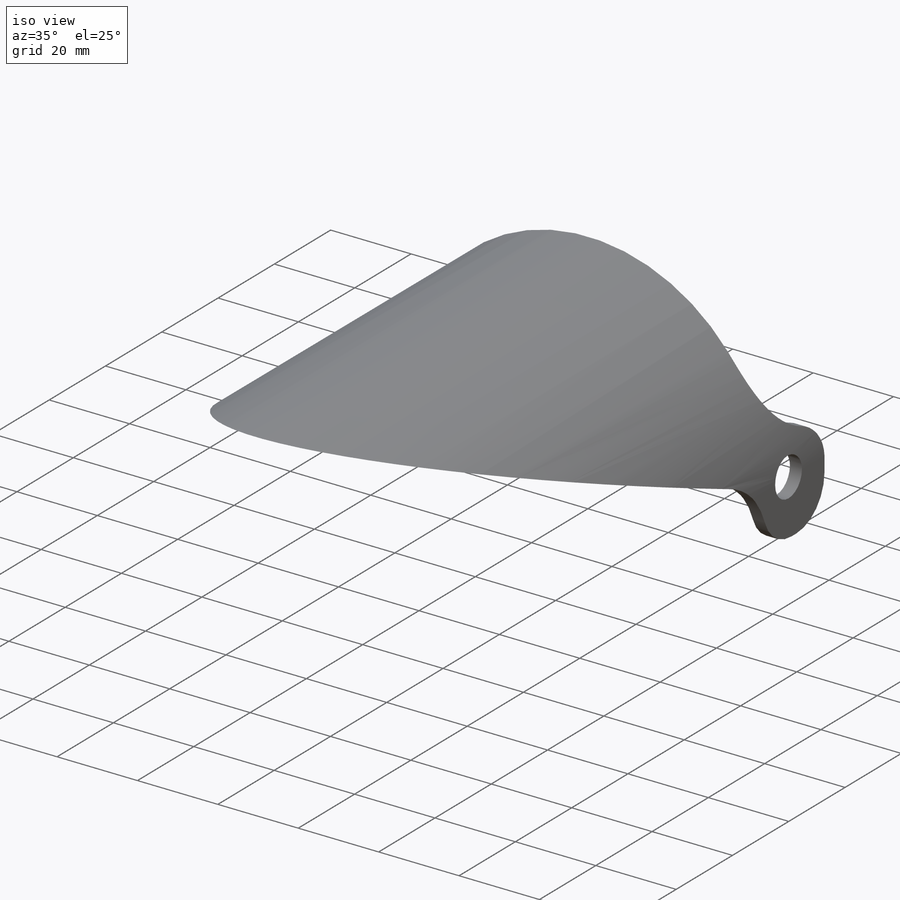
[diagram: iso view]
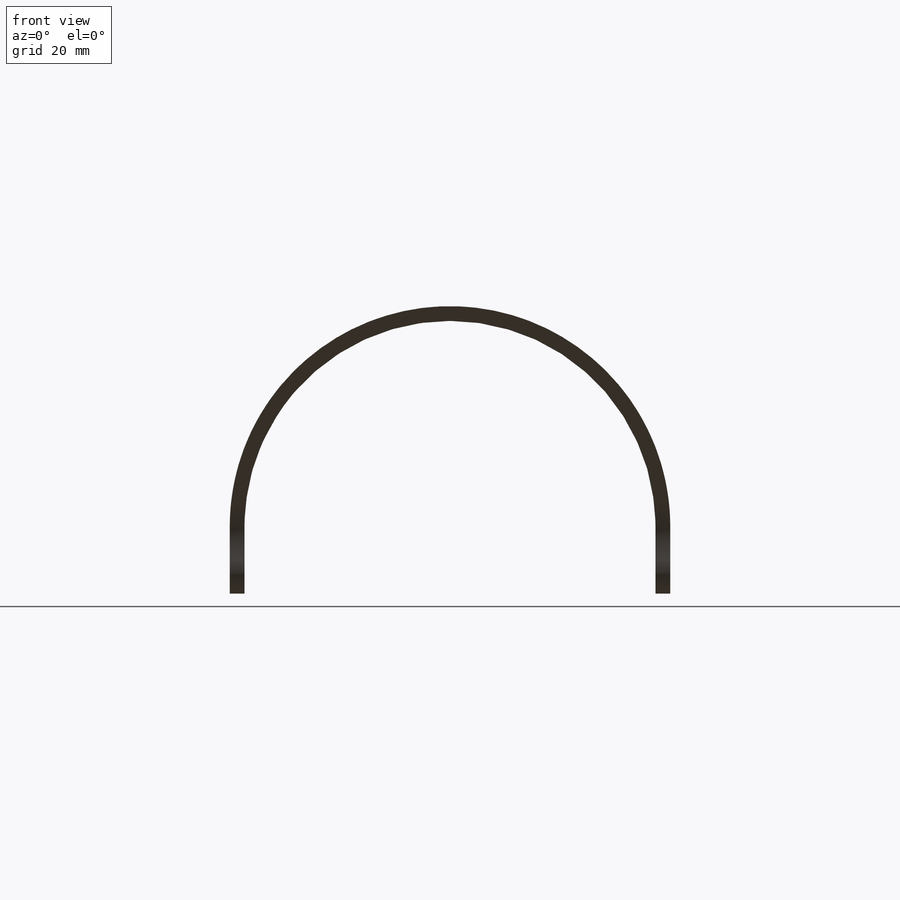
[diagram: front view]
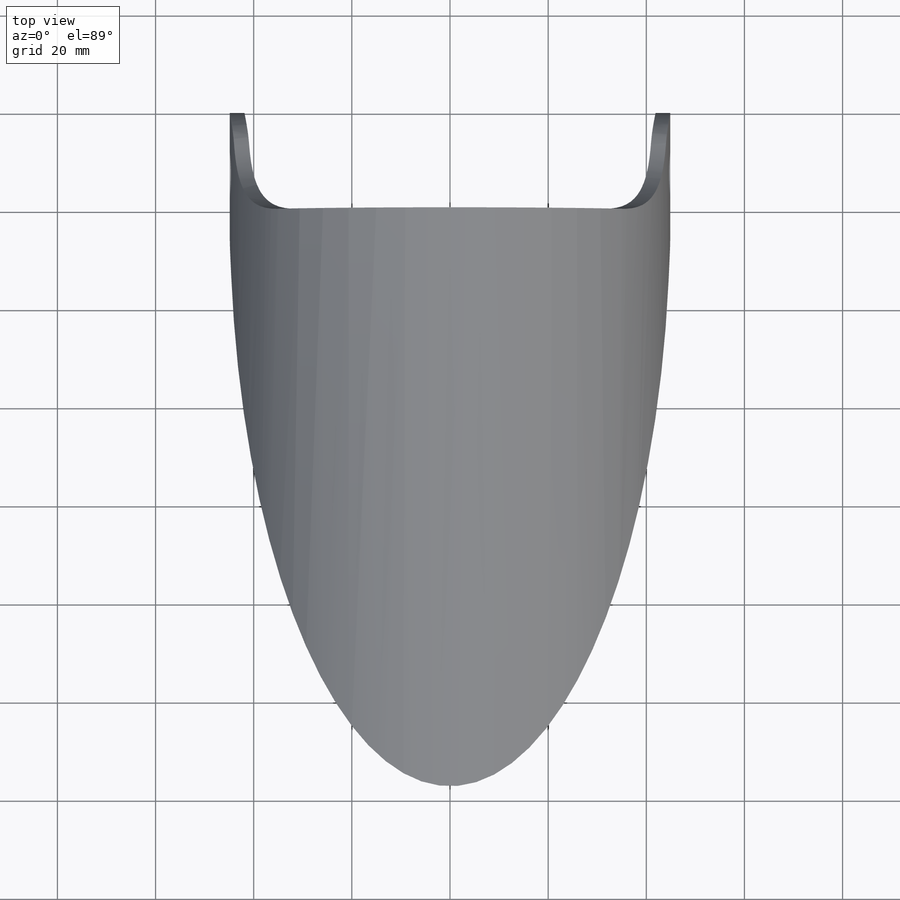
[diagram: top view]
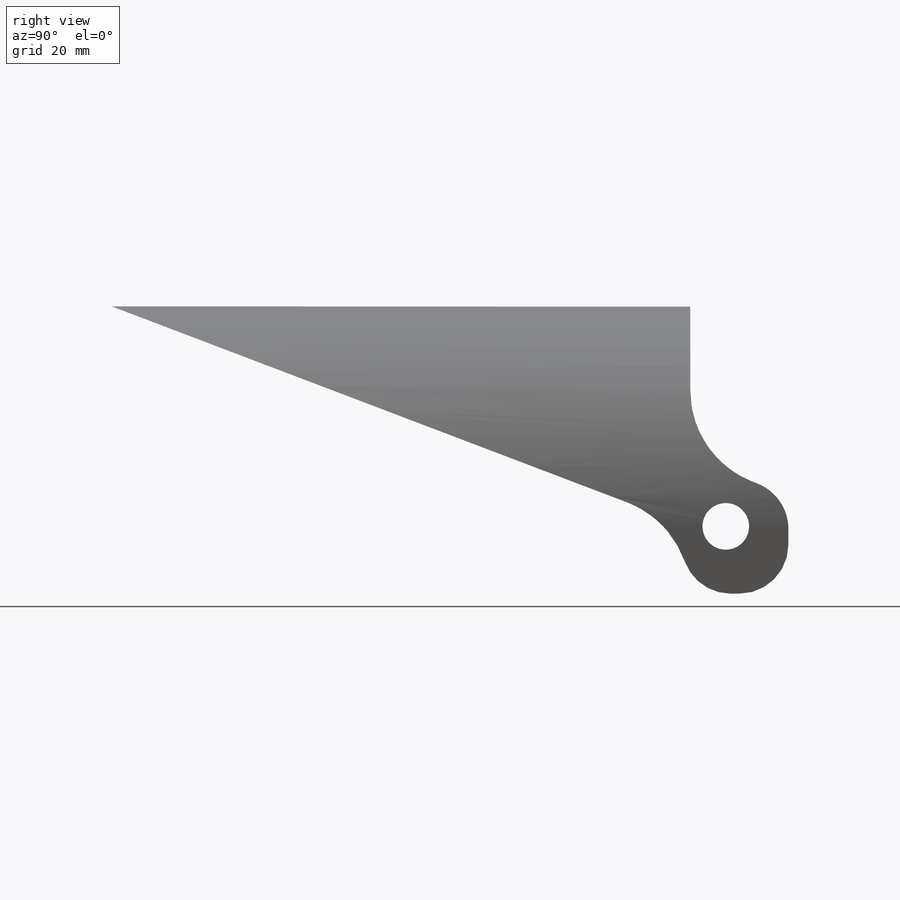
[diagram: right view]
SOLIDWORKS PART (.sldprt)
format: sldprt  version: not decoded by parser v0  size: 210,944 bytes
history: native  units: mm
features: sketch x3, cut_extrude x2, fillet x2, material x1, extrude x1 + 1 further entry (+10 scaffold rows collapsed)
feature tree (20):
  scaffold x10  (default folders/planes/origin — collapsed)
  material  "Material <not specified>"
  "Annotations"  RD1=13.711308mm
  sketch  "Sketch2"  dims[D1=89.75mm D2=3.0mm]
  extrude  "Boss-Extrude1"  Depth=138mm
  sketch  "Sketch3"  dims[D1=20.0mm D2=20.0mm]
  cut_extrude  "Cut-Extrude1"  Depth=138mm
  fillet  "Fillet1"  Radius=20mm
  fillet  "Fillet2"  Radius=10mm
  sketch  "Sketch4"  dims[D1=9.53mm]
  cut_extrude  "Cut-Extrude2"  [1 undecoded]
decode coverage: 7 of 8 modeling features carry decoded parameters; 1 rows unclassified (native names shown)
note: 1 parameter value undecoded
note: suppression state not decoded; provenance and decode notes live in map.json
